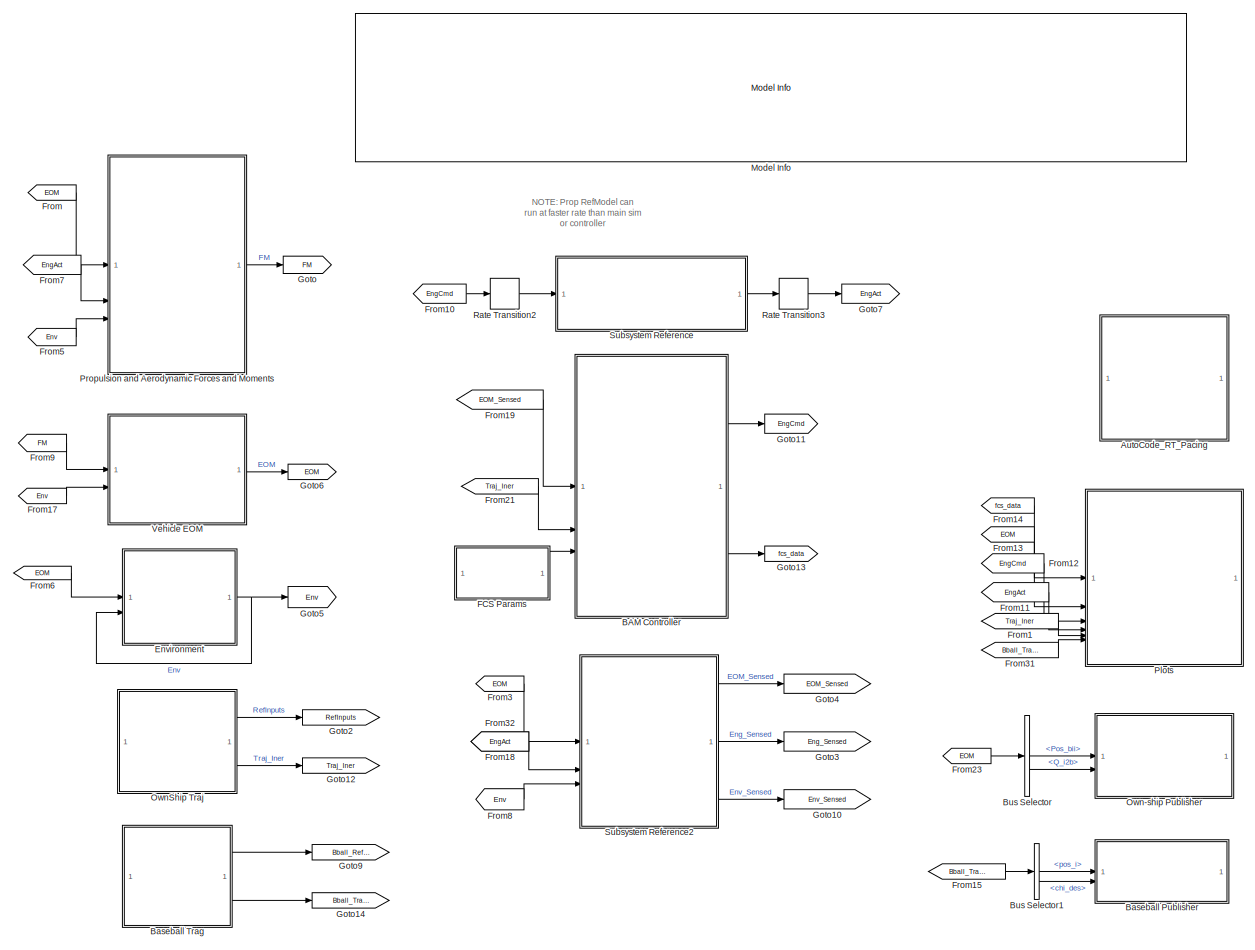
[diagram: root canvas - part 1/2, most of the canvas]
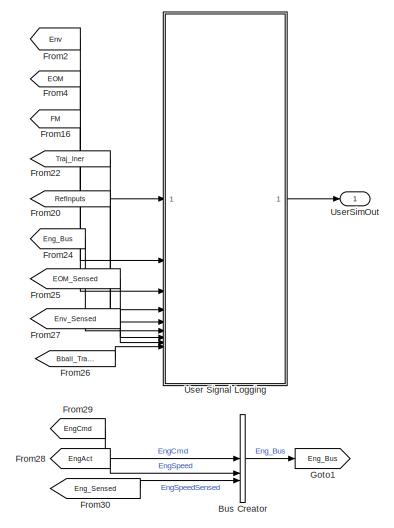
[diagram: root canvas - part 2/2, middle right region]
MODEL slx_60298fe1f079
KIND model
CONFIG AbsTol = auto
CONFIG EnableMultiTasking = off
CONFIG FixedStep = auto
CONFIG MaxStep = auto
CONFIG MinStep = auto
CONFIG RelTol = 1e-3
CONFIG SampleTimeConstraint = Unconstrained
CONFIG SolverName = FixedStepAuto
CONFIG StartTime = 0.0
CONFIG StopTime = SimPar.model_params.stop_time
BLOCK [SubSystem] AutoCode_RT_Pacing
  ReferencedSubsystem = Autocode_RT_Pacing
BLOCK [SubSystem] BAM Controller
  ReferencedSubsystem = BAM_Controller
BLOCK [SubSystem] Baseball Publisher
  ReferencedSubsystem = ROS2_Bball
BLOCK [SubSystem] Baseball Trag
  ReferencedSubsystem = Bball_Ref_Inputs
BLOCK [BusCreator] Bus Creator
  DisplayOption = bar
  InheritFromInputs = on
  Inputs = 3
  OutDataTypeStr = Bus: BUS_PROP_CMD
BLOCK [BusSelector] Bus Selector
  OutputSignals = InertialData.Pos_bii,InertialData.Q_i2b
BLOCK [BusSelector] Bus Selector1
  OutputSignals = pos_i,chi_des
BLOCK [SubSystem] Environment
  ReferencedSubsystem = Environment
BLOCK [SubSystem] FCS Params
  NameLocation = top
  ReferencedSubsystem = FCS_Parameters
BLOCK [From] From
  GotoTag = EOM
BLOCK [From] From1
  GotoTag = Traj_Iner
BLOCK [From] From10
  GotoTag = EngCmd
BLOCK [From] From11
  GotoTag = EngAct
BLOCK [From] From12
  GotoTag = EngCmd
BLOCK [From] From13
  GotoTag = EOM
BLOCK [From] From14
  GotoTag = fcs_data
BLOCK [From] From15
  GotoTag = Bball_Traj_Iner
BLOCK [From] From16
  GotoTag = FM
BLOCK [From] From17
  GotoTag = Env
BLOCK [From] From18
  GotoTag = EngAct
BLOCK [From] From19
  GotoTag = EOM_Sensed
BLOCK [From] From2
  GotoTag = Env
BLOCK [From] From20
  GotoTag = RefInputs
BLOCK [From] From21
  GotoTag = Traj_Iner
BLOCK [From] From22
  GotoTag = Traj_Iner
BLOCK [From] From23
  GotoTag = EOM
BLOCK [From] From24
  GotoTag = Eng_Bus
BLOCK [From] From25
  GotoTag = EOM_Sensed
BLOCK [From] From26
  GotoTag = Bball_Traj_Iner
BLOCK [From] From27
  GotoTag = Env_Sensed
BLOCK [From] From28
  GotoTag = EngAct
BLOCK [From] From29
  GotoTag = EngCmd
BLOCK [From] From3
  GotoTag = EOM
BLOCK [From] From30
  GotoTag = Eng_Sensed
BLOCK [From] From31
  GotoTag = Bball_Traj_Iner
BLOCK [From] From32
  GotoTag = EngAct
BLOCK [From] From4
  GotoTag = EOM
BLOCK [From] From5
  GotoTag = Env
BLOCK [From] From6
  GotoTag = EOM
BLOCK [From] From7
  GotoTag = EngAct
BLOCK [From] From8
  GotoTag = Env
BLOCK [From] From9
  GotoTag = FM
BLOCK [Goto] Goto
  GotoTag = FM
BLOCK [Goto] Goto1
  GotoTag = Eng_Bus
BLOCK [Goto] Goto10
  GotoTag = Env_Sensed
BLOCK [Goto] Goto11
  GotoTag = EngCmd
BLOCK [Goto] Goto12
  GotoTag = Traj_Iner
BLOCK [Goto] Goto13
  GotoTag = fcs_data
BLOCK [Goto] Goto14
  GotoTag = Bball_Traj_Iner
BLOCK [Goto] Goto2
  GotoTag = RefInputs
BLOCK [Goto] Goto3
  GotoTag = Eng_Sensed
BLOCK [Goto] Goto4
  GotoTag = EOM_Sensed
BLOCK [Goto] Goto5
  GotoTag = Env
BLOCK [Goto] Goto6
  GotoTag = EOM
BLOCK [Goto] Goto7
  GotoTag = EngAct
BLOCK [Goto] Goto9
  GotoTag = Bball_RefInputs
BLOCK [Reference] Model Info  REF=simulink/Model-Wide
Utilities/Model Info
  SourceBlock = simulink/Model-Wide\nUtilities/Model Info
  SourceType = CMBlock
BLOCK [SubSystem] Own-ship Publisher
  ReferencedSubsystem = ROS2
BLOCK [SubSystem] OwnShip Traj
  ReferencedSubsystem = ReferenceInputs
BLOCK [SubSystem] Plots
  ReferencedSubsystem = Sim_Plots
BLOCK [SubSystem] Propulsion and Aerodynamic Forces and Moments
  ReferencedSubsystem = Poly_AeroProp
BLOCK [RateTransition] Rate Transition2
  OutPortSampleTime = SimIn.model_params.sim_rate
BLOCK [RateTransition] Rate Transition3
  OutPortSampleTime = SimIn.model_params.sim_rate
BLOCK [SubSystem] Subsystem Reference
  ReferencedSubsystem = PropModelBAM
BLOCK [SubSystem] Subsystem Reference2
  ReferencedSubsystem = Sensors
BLOCK [SubSystem] User Signal Logging
  ReferencedSubsystem = SimOut
BLOCK [Outport] UserSimOut
BLOCK [SubSystem] Vehicle EOM
  ReferencedSubsystem = VehicleEOMRef
ANNOTATION (root): NOTE: Prop RefModel can run at faster rate than main sim or controller
LINE BAM Controller:1 -> Goto11:1
LINE BAM Controller:2 -> Goto13:1
LINE Baseball Trag:1 -> Goto9:1
LINE Baseball Trag:2 -> Goto14:1
LINE Bus Creator:1 -> Goto1:1
LINE Bus Selector1:1 -> Baseball Publisher:1
LINE Bus Selector1:2 -> Baseball Publisher:2
LINE Bus Selector:1 -> Own-ship Publisher:1
LINE Bus Selector:2 -> Own-ship Publisher:2
NET Environment:1 -> Environment:2, Goto5:1
LINE FCS Params:1 -> BAM Controller:3
LINE From10:1 -> Rate Transition2:1
LINE From11:1 -> Plots:4
LINE From12:1 -> Plots:3
LINE From13:1 -> Plots:2
LINE From14:1 -> Plots:1
LINE From15:1 -> Bus Selector1:1
LINE From16:1 -> User Signal Logging:3
LINE From17:1 -> Vehicle EOM:2
LINE From18:1 -> Subsystem Reference2:2
LINE From19:1 -> BAM Controller:1
LINE From1:1 -> Plots:5
LINE From20:1 -> User Signal Logging:5
LINE From21:1 -> BAM Controller:2
LINE From22:1 -> User Signal Logging:4
LINE From23:1 -> Bus Selector:1
LINE From24:1 -> User Signal Logging:6
LINE From25:1 -> User Signal Logging:7
LINE From26:1 -> User Signal Logging:9
LINE From27:1 -> User Signal Logging:8
LINE From28:1 -> Bus Creator:2
LINE From29:1 -> Bus Creator:1
LINE From2:1 -> User Signal Logging:1
LINE From30:1 -> Bus Creator:3
LINE From31:1 -> Plots:6
LINE From3:1 -> Subsystem Reference2:1
LINE From4:1 -> User Signal Logging:2
LINE From5:1 -> Propulsion and Aerodynamic Forces and Moments:3
LINE From6:1 -> Environment:1
LINE From7:1 -> Propulsion and Aerodynamic Forces and Moments:2
LINE From8:1 -> Subsystem Reference2:3
LINE From9:1 -> Vehicle EOM:1
LINE From:1 -> Propulsion and Aerodynamic Forces and Moments:1
LINE OwnShip Traj:1 -> Goto2:1
LINE OwnShip Traj:2 -> Goto12:1
LINE Propulsion and Aerodynamic Forces and Moments:1 -> Goto:1
LINE Rate Transition2:1 -> Subsystem Reference:1
LINE Rate Transition3:1 -> Goto7:1
LINE Subsystem Reference2:1 -> Goto4:1
LINE Subsystem Reference2:2 -> Goto3:1
LINE Subsystem Reference2:3 -> Goto10:1
LINE Subsystem Reference:1 -> Rate Transition3:1
LINE User Signal Logging:1 -> UserSimOut:1
LINE Vehicle EOM:1 -> Goto6:1
note: NET lines group one-source signal fan-out (src -> all destinations, sorted); 1:1 wires keep LINE
